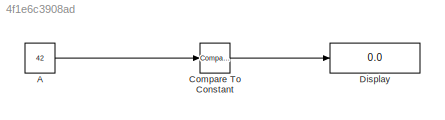
MODEL slx_4f1e6c3908ad
KIND model
BLOCK [Constant] A
  OutDataTypeStr = int8
  Value = 42
BLOCK [Reference] Compare To Constant  REF=simulink/Logic and Bit
Operations/Compare
To Constant
  OutDataTypeStr = boolean
  Ports = [1, 1]
  SourceBlock = simulink/Logic and Bit\nOperations/Compare\nTo Constant
  SourceType = Compare To Constant
  ZeroCross = on
  const = 42.0
  relop = ==
BLOCK [Display] Display
  Decimation = 1
  Ports = [1]
LINE A:1 -> Compare To Constant:1
LINE Compare To Constant:1 -> Display:1
